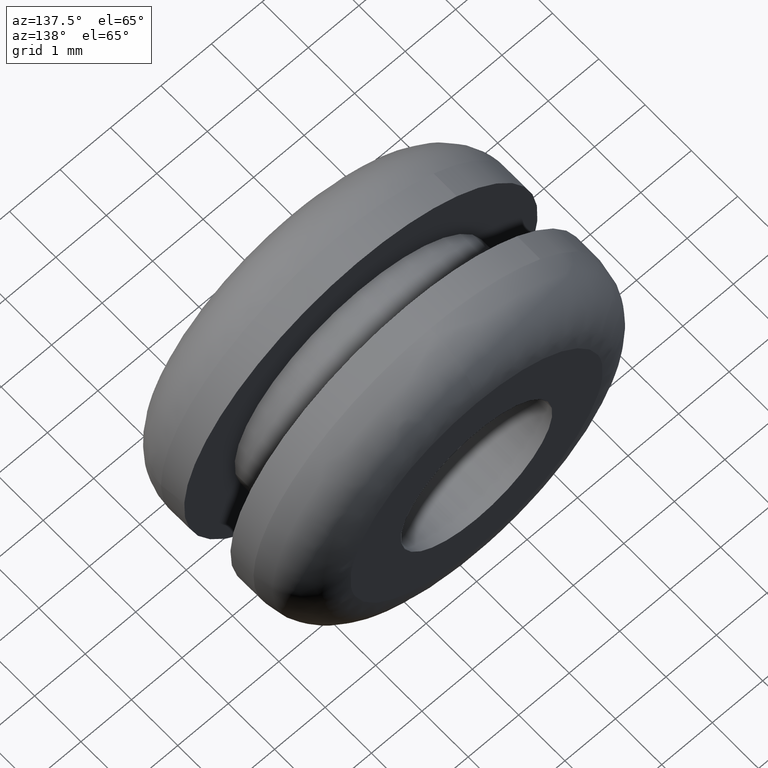
[diagram: clean part render]
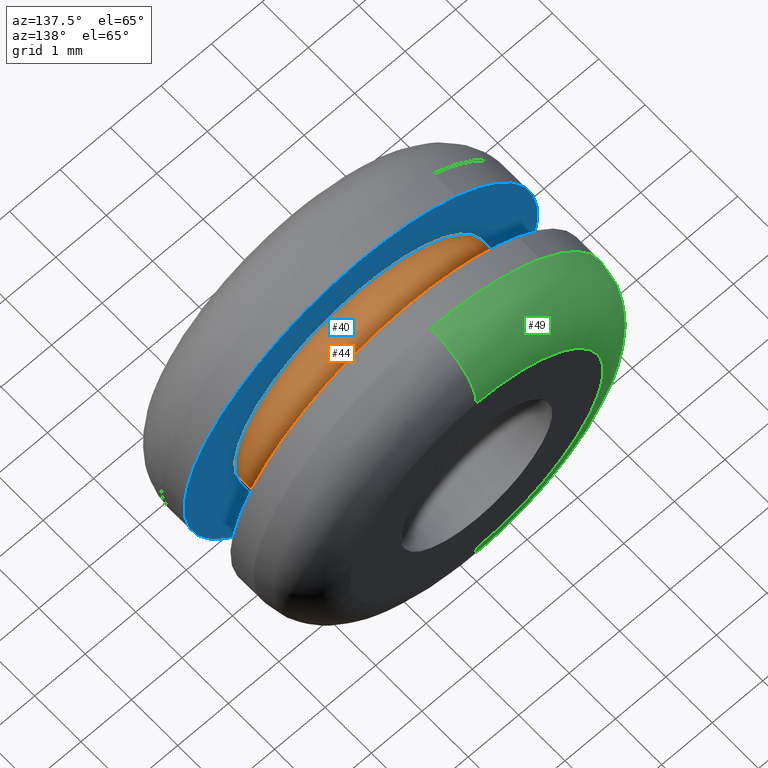
[diagram: same view with three faces highlighted in distinct colors, each labeled with its STEP entity id]
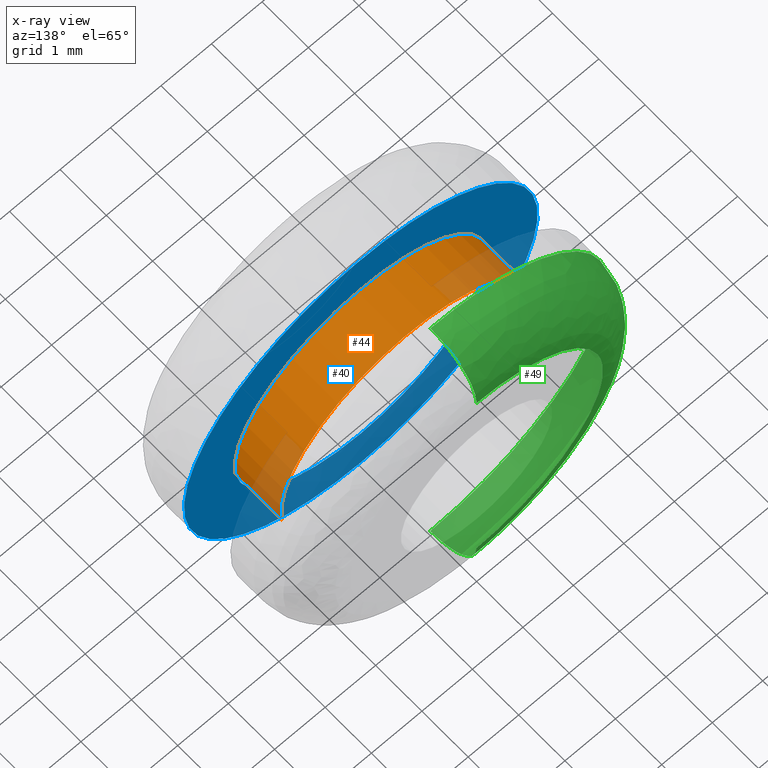
[diagram: x-ray of the same camera — body ghosted, the three highlighted faces saturated]
A machine part, auxiliary view with three faces highlighted in distinct colors.
The next image is the same camera in x-ray (body ghosted, the three faces saturated) — at least one of them is partly hidden behind the body in this view.
Their STEP definitions:

[orange] entity #44 — the highlighted cylindrical surface (partial cylindrical patch) has radius 2.5 mm, axis along (0, 1, 0).
#44=ADVANCED_FACE('',(#101),#100,.T.);
#100=CYLINDRICAL_SURFACE('',#247,2.50000000000E+000);
#101=FACE_OUTER_BOUND('',#248,.T.);
#244=CARTESIAN_POINT('',(2.08888715409E-016,2.52500000000E+000,1.37333843271E-015));
#245=DIRECTION('',(3.87739764389E-016,1.00000000000E+000,4.01448887381E-015));
#246=DIRECTION('',(-9.93009526364E-001,-8.88178419700E-017,1.18034234657E-001));
#247=AXIS2_PLACEMENT_3D('',#244,#245,#246);
#248=EDGE_LOOP('',(#411,#412,#413,#414));
#411=ORIENTED_EDGE('',*,*,#496,.T.);
#412=ORIENTED_EDGE('',*,*,#509,.F.);
#413=ORIENTED_EDGE('',*,*,#490,.F.);
#414=ORIENTED_EDGE('',*,*,#510,.T.);
#490=EDGE_CURVE('',#557,#564,#565,.T.);
#496=EDGE_CURVE('',#606,#598,#607,.T.);
#509=EDGE_CURVE('',#564,#598,#696,.T.);
#510=EDGE_CURVE('',#557,#606,#702,.T.);
#557=VERTEX_POINT('',#882);
#564=VERTEX_POINT('',#887);
#565=CIRCLE('',#891,2.50000000000E+000);
#598=VERTEX_POINT('',#911);
#606=VERTEX_POINT('',#917);
#607=CIRCLE('',#921,2.50000000000E+000);
#696=(BOUNDED_CURVE() B_SPLINE_CURVE(1,(#981,#982),.UNSPECIFIED.,.F.,.F.) B_SPLINE_CURVE_WITH_KNOTS((2,2),(8.33332935974E-002,9.16666633252E-001),.UNSPECIFIED.) CURVE() GEOMETRIC_REPRESENTATION_ITEM() RATIONAL_B_SPLINE_CURVE((1.00000000000E+000,1.00000000000E+000)) REPRESENTATION_ITEM('') );
#702=(BOUNDED_CURVE() B_SPLINE_CURVE(1,(#983,#984),.UNSPECIFIED.,.F.,.F.) B_SPLINE_CURVE_WITH_KNOTS((2,2),(8.33333333338E-002,9.16666666667E-001),.UNSPECIFIED.) CURVE() GEOMETRIC_REPRESENTATION_ITEM() RATIONAL_B_SPLINE_CURVE((7.50000000000E-001,7.50000000000E-001)) REPRESENTATION_ITEM('') );
#882=CARTESIAN_POINT('',(2.48247277739E+000,1.50000000000E+000,-2.95514651912E-001));
#887=CARTESIAN_POINT('',(-2.48252387809E+000,1.50000000000E+000,2.95085063535E-001));
#888=CARTESIAN_POINT('',(8.52873327517E-013,1.50000000000E+000,1.87760917925E-012));
#889=DIRECTION('',(2.16842361283E-014,-1.00000000000E+000,1.47062106026E-013));
#890=DIRECTION('',(-3.40616423955E-013,-1.47062106026E-013,-1.00000000000E+000));
#891=AXIS2_PLACEMENT_3D('',#888,#889,#890);
#911=CARTESIAN_POINT('',(-2.48252387809E+000,2.50000000000E+000,2.95085063535E-001));
#917=CARTESIAN_POINT('',(2.48247277739E+000,2.50000000000E+000,-2.95514651912E-001));
#918=CARTESIAN_POINT('',(8.32001134654E-013,2.50000000000E+000,1.83097981221E-012));
#919=DIRECTION('',(-7.94530886529E-016,-1.00000000000E+000,-6.64508466045E-016));
#920=DIRECTION('',(-3.32345262422E-013,6.64508466045E-016,-1.00000000000E+000));
#921=AXIS2_PLACEMENT_3D('',#918,#919,#920);
#981=CARTESIAN_POINT('',(-2.48252381591E+000,1.49999995232E+000,2.95085586642E-001));
#982=CARTESIAN_POINT('',(-2.48252381591E+000,2.49999995990E+000,2.95085586642E-001));
#983=CARTESIAN_POINT('',(2.48252381591E+000,1.50000000000E+000,-2.95085586642E-001));
#984=CARTESIAN_POINT('',(2.48252381591E+000,2.50000000000E+000,-2.95085586642E-001));

[blue] entity #40 — the highlighted planar face has unit normal (0, -1, 0).
#40=ADVANCED_FACE('',(#57,#58),#56,.F.);
#56=PLANE('',#223);
#57=FACE_OUTER_BOUND('',#224,.T.);
#58=FACE_BOUND('',#225,.T.);
#220=CARTESIAN_POINT('',(-7.27461339179E+000,1.50000000000E+000,8.05000000000E+000));
#221=DIRECTION('',(0.00000000000E+000,-1.00000000000E+000,0.00000000000E+000));
#222=DIRECTION('',(0.00000000000E+000,0.00000000000E+000,-1.00000000000E+000));
#223=AXIS2_PLACEMENT_3D('',#220,#221,#222);
#224=EDGE_LOOP('',(#388,#389,#390));
#225=EDGE_LOOP('',(#391,#392,#393));
#388=ORIENTED_EDGE('',*,*,#486,.F.);
#389=ORIENTED_EDGE('',*,*,#487,.F.);
#390=ORIENTED_EDGE('',*,*,#488,.F.);
#391=ORIENTED_EDGE('',*,*,#489,.T.);
#392=ORIENTED_EDGE('',*,*,#490,.T.);
#393=ORIENTED_EDGE('',*,*,#491,.T.);
#486=EDGE_CURVE('',#535,#536,#537,.T.);
#487=EDGE_CURVE('',#543,#535,#544,.T.);
#488=EDGE_CURVE('',#536,#543,#550,.T.);
#489=EDGE_CURVE('',#556,#557,#558,.T.);
#490=EDGE_CURVE('',#557,#564,#565,.T.);
#491=EDGE_CURVE('',#564,#556,#571,.T.);
#535=VERTEX_POINT('',#866);
#536=VERTEX_POINT('',#867);
#537=CIRCLE('',#871,3.50000000000E+000);
#543=VERTEX_POINT('',#872);
#544=CIRCLE('',#876,3.50000000000E+000);
#550=CIRCLE('',#880,3.50000000000E+000);
#556=VERTEX_POINT('',#881);
#557=VERTEX_POINT('',#882);
#558=CIRCLE('',#886,2.50000000000E+000);
#564=VERTEX_POINT('',#887);
#565=CIRCLE('',#891,2.50000000000E+000);
#571=CIRCLE('',#895,2.50000000000E+000);
#866=CARTESIAN_POINT('',(-1.89955098888E+000,1.50000000000E+000,2.93967788042E+000));
#867=CARTESIAN_POINT('',(-1.11022302463E-015,1.50000000000E+000,-3.50000000000E+000));
#868=CARTESIAN_POINT('',(9.99200722163E-016,1.50000000000E+000,2.27595720048E-015));
#869=DIRECTION('',(0.00000000000E+000,-1.00000000000E+000,0.00000000000E+000));
#870=DIRECTION('',(4.44089209850E-016,0.00000000000E+000,-1.00000000000E+000));
#871=AXIS2_PLACEMENT_3D('',#868,#869,#870);
#872=CARTESIAN_POINT('',(1.90043609291E+000,1.50000000000E+000,-2.93910575801E+000));
#873=CARTESIAN_POINT('',(9.99200722163E-016,1.50000000000E+000,2.27595720048E-015));
#874=DIRECTION('',(0.00000000000E+000,-1.00000000000E+000,0.00000000000E+000));
#875=DIRECTION('',(4.44089209850E-016,0.00000000000E+000,-1.00000000000E+000));
#876=AXIS2_PLACEMENT_3D('',#873,#874,#875);
#877=CARTESIAN_POINT('',(9.99200722163E-016,1.50000000000E+000,2.27595720048E-015));
#878=DIRECTION('',(0.00000000000E+000,-1.00000000000E+000,0.00000000000E+000));
#879=DIRECTION('',(4.44089209850E-016,0.00000000000E+000,-1.00000000000E+000));
#880=AXIS2_PLACEMENT_3D('',#877,#878,#879);
#881=CARTESIAN_POINT('',(3.33066907388E-016,1.50000000000E+000,-2.50000000000E+000));
#882=CARTESIAN_POINT('',(2.48247277739E+000,1.50000000000E+000,-2.95514651912E-001));
#883=CARTESIAN_POINT('',(8.52873327517E-013,1.50000000000E+000,1.87760917925E-012));
#884=DIRECTION('',(2.16842361283E-014,-1.00000000000E+000,1.47062106026E-013));
#885=DIRECTION('',(-3.40616423955E-013,-1.47062106026E-013,-1.00000000000E+000));
#886=AXIS2_PLACEMENT_3D('',#883,#884,#885);
#887=CARTESIAN_POINT('',(-2.48252387809E+000,1.50000000000E+000,2.95085063535E-001));
#888=CARTESIAN_POINT('',(8.52873327517E-013,1.50000000000E+000,1.87760917925E-012));
#889=DIRECTION('',(2.16842361283E-014,-1.00000000000E+000,1.47062106026E-013));
#890=DIRECTION('',(-3.40616423955E-013,-1.47062106026E-013,-1.00000000000E+000));
#891=AXIS2_PLACEMENT_3D('',#888,#889,#890);
#892=CARTESIAN_POINT('',(8.52873327517E-013,1.50000000000E+000,1.87760917925E-012));
#893=DIRECTION('',(2.16842361283E-014,-1.00000000000E+000,1.47062106026E-013));
#894=DIRECTION('',(-3.40616423955E-013,-1.47062106026E-013,-1.00000000000E+000));
#895=AXIS2_PLACEMENT_3D('',#892,#893,#894);

[green] entity #49 — the highlighted face is a freeform B-spline surface patch.
#49=ADVANCED_FACE('',(#151),#150,.T.);
#150=( BOUNDED_SURFACE() B_SPLINE_SURFACE( 2,2,((#290,#291,#292,#293,#294),(#295,#296,#297,#298,#299),(#300,#301,#302,#303,#304),(#305,#306,#307,#308,#309),(#310,#311,#312,#313,#314)), .UNSPECIFIED.,.F.,.F.,.F.) B_SPLINE_SURFACE_WITH_KNOTS((3,2,3),(3,2,3),(-1.57079693037E+000,-1.04719719726E+000,1.06181747350E-006),(3.14159265359E+000,4.71238898038E+000,6.28318530718E+000), .UNSPECIFIED. ) GEOMETRIC_REPRESENTATION_ITEM() RATIONAL_B_SPLINE_SURFACE(((9.33012613407E-001,6.59739545873E-001,9.33012613407E-001,6.59739545873E-001,9.33012613407E-001),(9.33012536188E-001,6.59739491271E-001,9.33012536188E-001,6.59739491271E-001,9.33012536188E-001),(1.00000000000E+000,7.07106781187E-001,1.00000000000E+000,7.07106781187E-001,1.00000000000E+000),(8.66025226815E-001,6.12372310559E-001,8.66025226815E-001,6.12372310559E-001,8.66025226815E-001),(1.00000000000E+000,7.07106781187E-001,1.00000000000E+000,7.07106781187E-001,1.00000000000E+000))) REPRESENTATION_ITEM('') SURFACE() );
#151=FACE_OUTER_BOUND('',#315,.T.);
#290=CARTESIAN_POINT('',(3.98169729860E-013,4.00000000000E+000,-2.49999938225E+000));
#291=CARTESIAN_POINT('',(-2.49999938224E+000,4.00000000000E+000,-2.49999938225E+000));
#292=CARTESIAN_POINT('',(-2.49999938224E+000,4.00000000000E+000,-3.79857771369E-014));
#293=CARTESIAN_POINT('',(-2.49999938224E+000,4.00000000000E+000,2.49999938225E+000));
#294=CARTESIAN_POINT('',(3.98782032886E-013,4.00000000000E+000,2.49999938225E+000));
#295=CARTESIAN_POINT('',(3.98136916627E-013,4.00000016553E+000,-2.76794909541E+000));
#296=CARTESIAN_POINT('',(-2.76794909541E+000,4.00000016553E+000,-2.76794909541E+000));
#297=CARTESIAN_POINT('',(-2.76794909541E+000,4.00000016553E+000,-3.79529628251E-014));
#298=CARTESIAN_POINT('',(-2.76794909541E+000,4.00000016553E+000,2.76794909541E+000));
#299=CARTESIAN_POINT('',(3.98814846237E-013,4.00000016553E+000,2.76794909541E+000));
#300=CARTESIAN_POINT('',(3.98060691384E-013,3.86602522681E+000,-3.00000030652E+000));
#301=CARTESIAN_POINT('',(-3.00000030652E+000,3.86602522681E+000,-3.00000030652E+000));
#302=CARTESIAN_POINT('',(-3.00000030652E+000,3.86602522681E+000,-3.87498795964E-014));
#303=CARTESIAN_POINT('',(-3.00000030652E+000,3.86602522681E+000,3.00000030652E+000));
#304=CARTESIAN_POINT('',(3.98795455272E-013,3.86602522681E+000,3.00000030652E+000));
#305=CARTESIAN_POINT('',(3.97896448997E-013,3.57734967929E+000,-3.50000061304E+000));
#306=CARTESIAN_POINT('',(-3.50000061304E+000,3.57734967929E+000,-3.50000061304E+000));
#307=CARTESIAN_POINT('',(-3.50000061304E+000,3.57734967929E+000,-4.04669946589E-014));
#308=CARTESIAN_POINT('',(-3.50000061304E+000,3.57734967929E+000,3.50000061304E+000));
#309=CARTESIAN_POINT('',(3.98753673595E-013,3.57734967929E+000,3.50000061304E+000));
#310=CARTESIAN_POINT('',(3.97690425134E-013,2.99999893818E+000,-3.50000000000E+000));
#311=CARTESIAN_POINT('',(-3.50000000000E+000,2.99999893818E+000,-3.50000000000E+000));
#312=CARTESIAN_POINT('',(-3.50000000000E+000,2.99999893818E+000,-4.40236833892E-014));
#313=CARTESIAN_POINT('',(-3.50000000000E+000,2.99999893818E+000,3.50000000000E+000));
#314=CARTESIAN_POINT('',(3.98547649582E-013,2.99999893818E+000,3.50000000000E+000));
#315=EDGE_LOOP('',(#443,#444,#445,#446,#447));
#443=ORIENTED_EDGE('',*,*,#527,.F.);
#444=ORIENTED_EDGE('',*,*,#528,.F.);
#445=ORIENTED_EDGE('',*,*,#521,.F.);
#446=ORIENTED_EDGE('',*,*,#498,.T.);
#447=ORIENTED_EDGE('',*,*,#526,.T.);
#498=EDGE_CURVE('',#619,#620,#621,.T.);
#521=EDGE_CURVE('',#619,#776,#777,.T.);
#526=EDGE_CURVE('',#620,#804,#811,.T.);
#527=EDGE_CURVE('',#817,#804,#818,.T.);
#528=EDGE_CURVE('',#776,#817,#824,.T.);
#619=VERTEX_POINT('',#926);
#620=VERTEX_POINT('',#927);
#621=CIRCLE('',#931,2.50000000009E+000);
#776=VERTEX_POINT('',#1027);
#777=(BOUNDED_CURVE() B_SPLINE_CURVE(2,(#1028,#1029,#1030,#1031,#1032),.UNSPECIFIED.,.F.,.F.) B_SPLINE_CURVE_WITH_KNOTS((3,2,3),(-1.57079628518E+000,-1.04719719726E+000,-6.17053708396E-008),.UNSPECIFIED.) CURVE() GEOMETRIC_REPRESENTATION_ITEM() RATIONAL_B_SPLINE_CURVE((9.33012613407E-001,9.33012618731E-001,1.00000000000E+000,8.66025226815E-001,1.00000000000E+000)) REPRESENTATION_ITEM('') );
#804=VERTEX_POINT('',#1048);
#811=(BOUNDED_CURVE() B_SPLINE_CURVE(2,(#1053,#1054,#1055,#1056,#1057),.UNSPECIFIED.,.F.,.F.) B_SPLINE_CURVE_WITH_KNOTS((3,2,3),(-1.57079667173E+000,-1.04719719726E+000,1.06181747350E-006),.UNSPECIFIED.) CURVE() GEOMETRIC_REPRESENTATION_ITEM() RATIONAL_B_SPLINE_CURVE((9.33012613407E-001,9.33012569278E-001,1.00000000000E+000,8.66025226815E-001,1.00000000000E+000)) REPRESENTATION_ITEM('') );
#817=VERTEX_POINT('',#1058);
#818=CIRCLE('',#1062,3.49999949730E+000);
#824=CIRCLE('',#1066,3.49999949730E+000);
#926=CARTESIAN_POINT('',(-8.28313713915E-011,4.00000000000E+000,2.50000000000E+000));
#927=CARTESIAN_POINT('',(-9.99200722163E-016,4.00000000000E+000,-2.50000000018E+000));
#928=CARTESIAN_POINT('',(-4.14155376660E-011,4.00000000000E+000,-9.13089603927E-011));
#929=DIRECTION('',(0.00000000000E+000,-1.00000000000E+000,0.00000000000E+000));
#930=DIRECTION('',(1.65662067397E-011,0.00000000000E+000,-1.00000000000E+000));
#931=AXIS2_PLACEMENT_3D('',#928,#929,#930);
#1027=CARTESIAN_POINT('',(5.70903495492E-010,3.00000000000E+000,3.49999973977E+000));
#1028=CARTESIAN_POINT('',(3.98782032967E-013,4.00000000000E+000,2.50000004259E+000));
#1029=CARTESIAN_POINT('',(3.98814846212E-013,3.99999998859E+000,2.76794940187E+000));
#1030=CARTESIAN_POINT('',(3.98795455272E-013,3.86602522681E+000,3.00000030652E+000));
#1031=CARTESIAN_POINT('',(3.98753673595E-013,3.57734967929E+000,3.50000061304E+000));
#1032=CARTESIAN_POINT('',(3.98547649582E-013,2.99999893818E+000,3.50000000000E+000));
#1048=CARTESIAN_POINT('',(-6.43261606707E-005,3.00000000001E+000,-3.49999925425E+000));
#1053=CARTESIAN_POINT('',(3.98169729828E-013,4.00000000000E+000,-2.49999964696E+000));
#1054=CARTESIAN_POINT('',(3.98136916587E-013,4.00000009460E+000,-2.76794921826E+000));
#1055=CARTESIAN_POINT('',(3.98060691384E-013,3.86602522681E+000,-3.00000030652E+000));
#1056=CARTESIAN_POINT('',(3.97896448997E-013,3.57734967929E+000,-3.50000061304E+000));
#1057=CARTESIAN_POINT('',(3.97690425134E-013,2.99999893818E+000,-3.50000000000E+000));
#1058=CARTESIAN_POINT('',(-2.17887863160E+000,3.00000000000E+000,2.73906697779E+000));
#1059=CARTESIAN_POINT('',(-5.02697574234E-007,3.00000000001E+000,2.42472522505E-007));
#1060=DIRECTION('',(-9.05180125268E-015,-1.00000000000E+000,-2.00218410784E-012));
#1061=DIRECTION('',(7.82608336375E-001,-1.25347247562E-012,6.22514410947E-001));
#1062=AXIS2_PLACEMENT_3D('',#1059,#1060,#1061);
#1063=CARTESIAN_POINT('',(-5.02697574234E-007,3.00000000001E+000,2.42472522505E-007));
#1064=DIRECTION('',(-9.05180125268E-015,-1.00000000000E+000,-2.00218410784E-012));
#1065=DIRECTION('',(7.82608336375E-001,-1.25347247562E-012,6.22514410947E-001));
#1066=AXIS2_PLACEMENT_3D('',#1063,#1064,#1065);